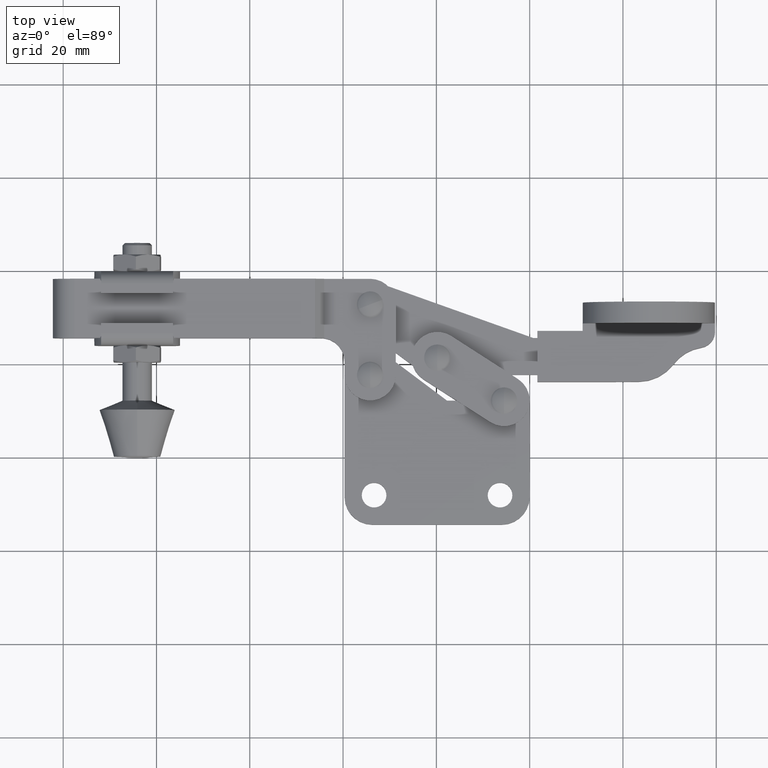
[diagram: clean part render]
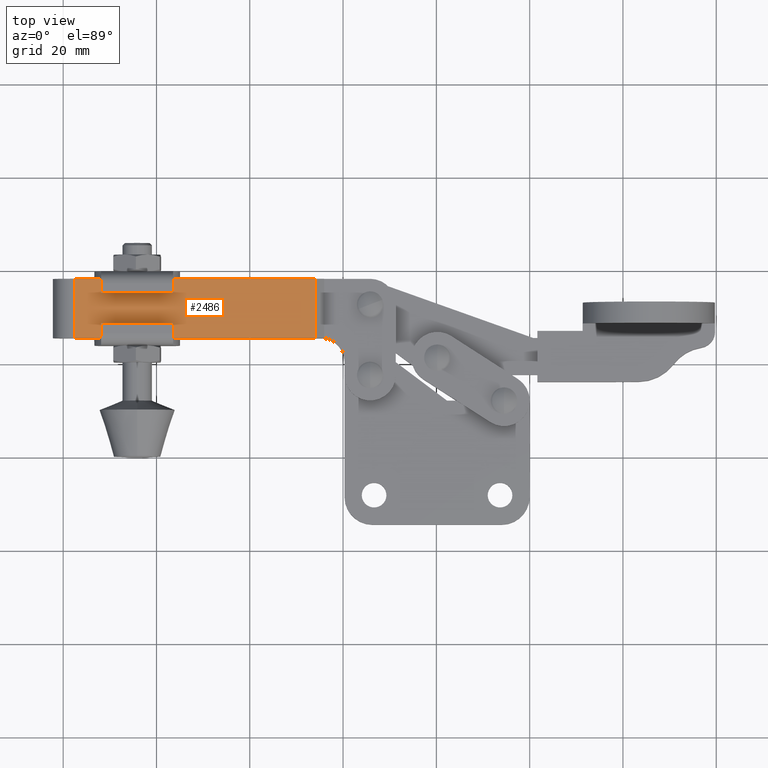
[diagram: same view with one face highlighted and labeled with its STEP entity id]
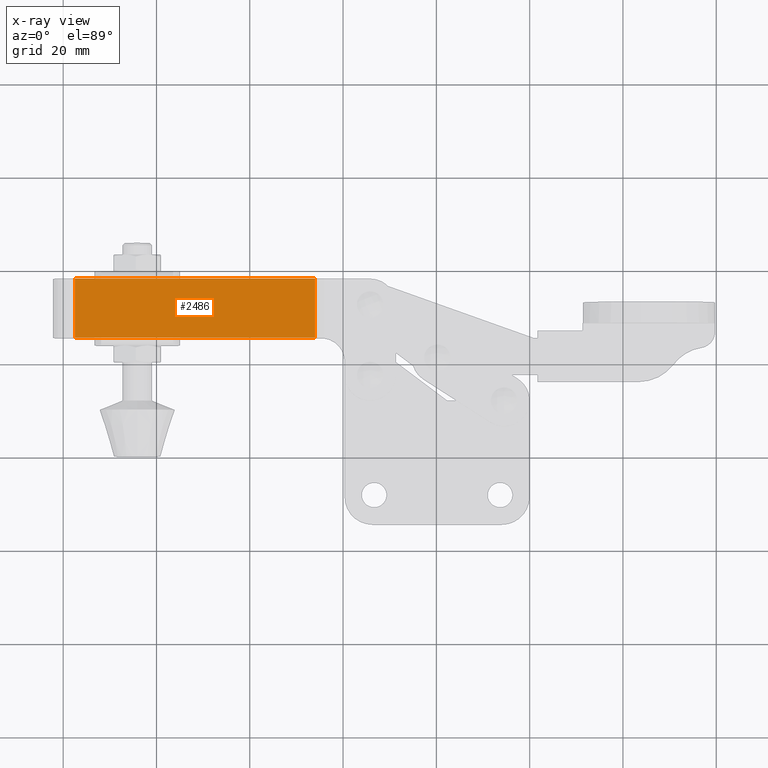
[diagram: x-ray of the same camera — body ghosted, the highlighted face saturated]
A machine part, top view. The second image highlights one B-rep face of the part: STEP entity #2486.
The next image is the same camera in x-ray: the body ghosted, the highlighted face saturated — about 0% of this face is hidden behind the body in this view.
In plain terms, the highlighted planar face has unit normal (-0, -0, -1).
Its self-contained STEP definition (entity closure, byte-faithful):
#439 = VECTOR ( 'NONE', #8614, 1000.000000000000000 ) ;
#467 = ORIENTED_EDGE ( 'NONE', *, *, #8137, .F. ) ;
#1125 = ORIENTED_EDGE ( 'NONE', *, *, #1384, .T. ) ;
#1360 = LINE ( 'NONE', #3228, #3234 ) ;
#1384 = EDGE_CURVE ( 'NONE', #6227, #7486, #7825, .T. ) ;
#2486 = ADVANCED_FACE ( 'NONE', ( #5441 ), #2546, .F. ) ;
#2546 = PLANE ( 'NONE',  #6408 ) ;
#2804 = EDGE_CURVE ( 'NONE', #6949, #6102, #4759, .T. ) ;
#3228 = CARTESIAN_POINT ( 'NONE',  ( -97.50000000000012800, 11.99999999999988600, 4.699999999999919400 ) ) ;
#3234 = VECTOR ( 'NONE', #7551, 1000.000000000000000 ) ;
#3330 = ORIENTED_EDGE ( 'NONE', *, *, #6604, .T. ) ;
#3425 = CARTESIAN_POINT ( 'NONE',  ( -46.02999999999997300, 38.10000000000003700, 4.699999999999912200 ) ) ;
#3681 = CARTESIAN_POINT ( 'NONE',  ( -97.50000000000021300, 38.09999999999999400, 4.699999999999919400 ) ) ;
#3700 = CARTESIAN_POINT ( 'NONE',  ( -46.02999999999997300, 25.39999999999995200, 4.699999999999909600 ) ) ;
#3919 = CARTESIAN_POINT ( 'NONE',  ( -97.50000000000012800, 11.99999999999988600, 4.699999999999919400 ) ) ;
#4082 = CARTESIAN_POINT ( 'NONE',  ( -46.02999999999994400, 11.99999999999994800, 4.699999999999912200 ) ) ;
#4117 = CARTESIAN_POINT ( 'NONE',  ( -97.50000000000014200, 25.39999999999995900, 4.699999999999916700 ) ) ;
#4545 = VECTOR ( 'NONE', #5672, 1000.000000000000000 ) ;
#4759 = LINE ( 'NONE', #5578, #8538 ) ;
#4943 = DIRECTION ( 'NONE',  ( 1.000000000000000000, -6.678685382510314100E-017, -1.357687016552162500E-016 ) ) ;
#5339 = ORIENTED_EDGE ( 'NONE', *, *, #2804, .T. ) ;
#5441 = FACE_OUTER_BOUND ( 'NONE', #6381, .T. ) ;
#5578 = CARTESIAN_POINT ( 'NONE',  ( -102.2000000000002000, 25.39999999999995600, 4.699999999999919400 ) ) ;
#5672 = DIRECTION ( 'NONE',  ( -8.769027171062738200E-016, 1.000000000000000000, -3.901894245522432200E-021 ) ) ;
#6102 = VERTEX_POINT ( 'NONE', #3700 ) ;
#6227 = VERTEX_POINT ( 'NONE', #3425 ) ;
#6381 = EDGE_LOOP ( 'NONE', ( #5339, #3330, #1125, #467 ) ) ;
#6408 = AXIS2_PLACEMENT_3D ( 'NONE', #3919, #9127, #6798 ) ;
#6604 = EDGE_CURVE ( 'NONE', #6102, #6227, #8326, .T. ) ;
#6798 = DIRECTION ( 'NONE',  ( 1.000000000000000000, 8.769027171062775600E-016, -1.348220705526906800E-016 ) ) ;
#6949 = VERTEX_POINT ( 'NONE', #4117 ) ;
#7486 = VERTEX_POINT ( 'NONE', #8980 ) ;
#7551 = DIRECTION ( 'NONE',  ( -8.769027171062738200E-016, 1.000000000000000000, -3.901894245522432200E-021 ) ) ;
#7825 = LINE ( 'NONE', #3681, #439 ) ;
#8137 = EDGE_CURVE ( 'NONE', #6949, #7486, #1360, .T. ) ;
#8326 = LINE ( 'NONE', #4082, #4545 ) ;
#8538 = VECTOR ( 'NONE', #4943, 1000.000000000000000 ) ;
#8614 = DIRECTION ( 'NONE',  ( -1.000000000000000000, -8.769027171062774700E-016, 1.348220705526906800E-016 ) ) ;
#8980 = CARTESIAN_POINT ( 'NONE',  ( -97.50000000000021300, 38.09999999999999400, 4.699999999999919400 ) ) ;
#9127 = DIRECTION ( 'NONE',  ( -1.348220705526906800E-016, -3.901894235386274200E-021, -1.000000000000000000 ) ) ;